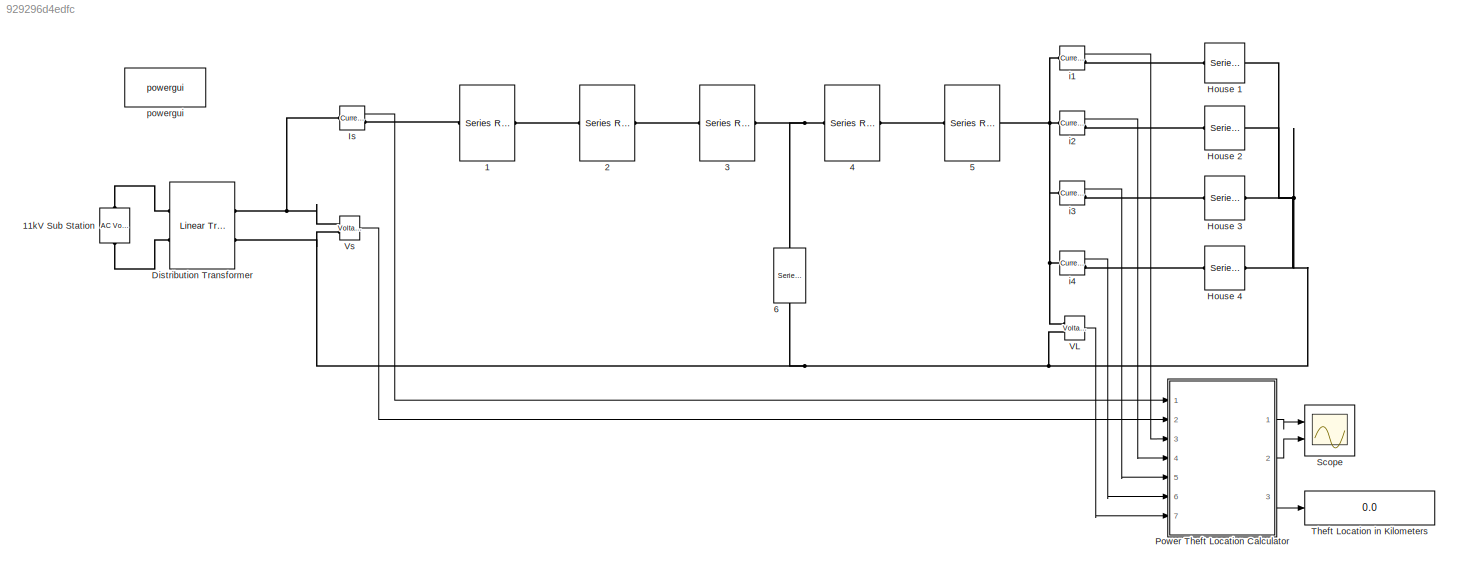
MODEL slx_929296d4edfc
KIND model
CONFIG AbsTol = auto
CONFIG EnableMultiTasking = off
CONFIG FixedStep = auto
CONFIG MaxStep = auto
CONFIG MinStep = auto
CONFIG RelTol = 1e-3
CONFIG SampleTimeConstraint = Unconstrained
CONFIG Solver = VariableStepAuto
CONFIG SolverName = VariableStepAuto
CONFIG StartTime = 0.0
CONFIG StopTime = 1
BLOCK [Reference] 1  REF=powerlib/Elements/Series RLC Branch
  Ports = [0, 0, 0, 0, 0, 1, 1]
  SourceBlock = powerlib/Elements/Series RLC Branch
  SourceProductBaseCode = PS
  SourceProductName = Simscape Power Systems
  SourceType = Series RLC Branch
BLOCK [Reference] 11kV Sub Station  REF=powerlib/Electrical
Sources/AC Voltage Source
  Ports = [0, 0, 0, 0, 0, 1, 1]
  SourceBlock = powerlib/Electrical\nSources/AC Voltage Source
  SourceProductBaseCode = PS
  SourceProductName = Simscape Power Systems
  SourceType = AC Voltage Source
BLOCK [Reference] 2  REF=powerlib/Elements/Series RLC Branch
  Ports = [0, 0, 0, 0, 0, 1, 1]
  SourceBlock = powerlib/Elements/Series RLC Branch
  SourceProductBaseCode = PS
  SourceProductName = Simscape Power Systems
  SourceType = Series RLC Branch
BLOCK [Reference] 3  REF=powerlib/Elements/Series RLC Branch
  Ports = [0, 0, 0, 0, 0, 1, 1]
  SourceBlock = powerlib/Elements/Series RLC Branch
  SourceProductBaseCode = PS
  SourceProductName = Simscape Power Systems
  SourceType = Series RLC Branch
BLOCK [Reference] 4  REF=powerlib/Elements/Series RLC Branch
  Ports = [0, 0, 0, 0, 0, 1, 1]
  SourceBlock = powerlib/Elements/Series RLC Branch
  SourceProductBaseCode = PS
  SourceProductName = Simscape Power Systems
  SourceType = Series RLC Branch
BLOCK [Reference] 5  REF=powerlib/Elements/Series RLC Branch
  Ports = [0, 0, 0, 0, 0, 1, 1]
  SourceBlock = powerlib/Elements/Series RLC Branch
  SourceProductBaseCode = PS
  SourceProductName = Simscape Power Systems
  SourceType = Series RLC Branch
BLOCK [Reference] 6  REF=powerlib/Elements/Series RLC Branch
  Ports = [0, 0, 0, 0, 0, 1, 1]
  SourceBlock = powerlib/Elements/Series RLC Branch
  SourceProductBaseCode = PS
  SourceProductName = Simscape Power Systems
  SourceType = Series RLC Branch
BLOCK [Reference] Distribution Transformer  REF=powerlib/Elements/Linear Transformer
  Ports = [0, 0, 0, 0, 0, 2, 2]
  SourceBlock = powerlib/Elements/Linear Transformer
  SourceProductBaseCode = PS
  SourceProductName = Simscape Power Systems
  SourceType = Linear Transformer
BLOCK [Reference] House 1  REF=powerlib/Elements/Series RLC Branch
  Ports = [0, 0, 0, 0, 0, 1, 1]
  SourceBlock = powerlib/Elements/Series RLC Branch
  SourceProductBaseCode = PS
  SourceProductName = Simscape Power Systems
  SourceType = Series RLC Branch
BLOCK [Reference] House 2  REF=powerlib/Elements/Series RLC Branch
  Ports = [0, 0, 0, 0, 0, 1, 1]
  SourceBlock = powerlib/Elements/Series RLC Branch
  SourceProductBaseCode = PS
  SourceProductName = Simscape Power Systems
  SourceType = Series RLC Branch
BLOCK [Reference] House 3  REF=powerlib/Elements/Series RLC Branch
  Ports = [0, 0, 0, 0, 0, 1, 1]
  SourceBlock = powerlib/Elements/Series RLC Branch
  SourceProductBaseCode = PS
  SourceProductName = Simscape Power Systems
  SourceType = Series RLC Branch
BLOCK [Reference] House 4  REF=powerlib/Elements/Series RLC Branch
  Ports = [0, 0, 0, 0, 0, 1, 1]
  SourceBlock = powerlib/Elements/Series RLC Branch
  SourceProductBaseCode = PS
  SourceProductName = Simscape Power Systems
  SourceType = Series RLC Branch
BLOCK [Reference] Is  REF=powerlib/Measurements/Current Measurement
  Ports = [0, 1, 0, 0, 0, 1, 1]
  SourceBlock = powerlib/Measurements/Current Measurement
  SourceProductBaseCode = PS
  SourceProductName = Simscape Power Systems
  SourceType = Current Measurement
  UserDataPersistent = on
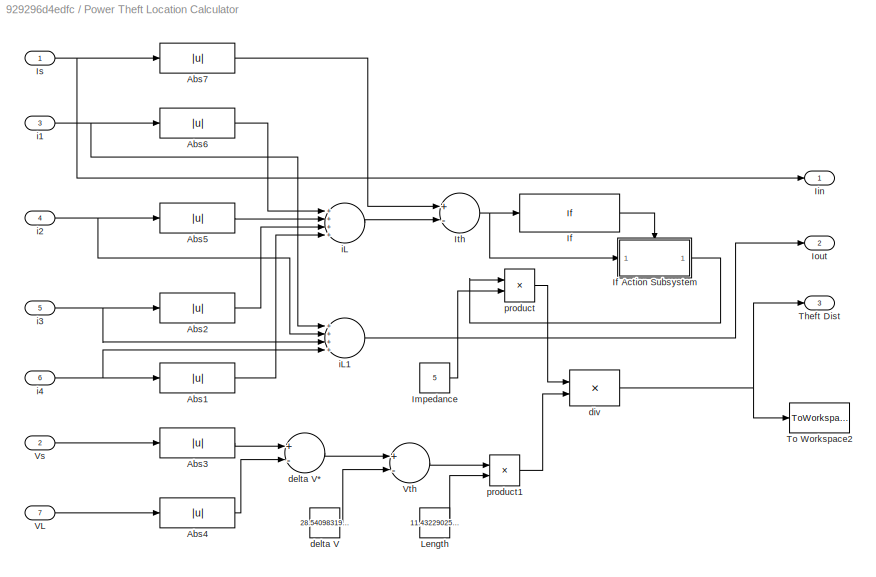
BLOCK [SubSystem] Power Theft Location Calculator
  Ports = [7, 3]
  RequestExecContextInheritance = off
BLOCK [Abs] Power Theft Location Calculator/Abs1
  SaturateOnIntegerOverflow = off
  ZeroCross = off
BLOCK [Abs] Power Theft Location Calculator/Abs2
  SaturateOnIntegerOverflow = off
  ZeroCross = off
BLOCK [Abs] Power Theft Location Calculator/Abs3
  SaturateOnIntegerOverflow = off
  ZeroCross = off
BLOCK [Abs] Power Theft Location Calculator/Abs4
  SaturateOnIntegerOverflow = off
  ZeroCross = off
BLOCK [Abs] Power Theft Location Calculator/Abs5
  SaturateOnIntegerOverflow = off
  ZeroCross = off
BLOCK [Abs] Power Theft Location Calculator/Abs6
  SaturateOnIntegerOverflow = off
  ZeroCross = off
BLOCK [Abs] Power Theft Location Calculator/Abs7
  SaturateOnIntegerOverflow = off
  ZeroCross = off
BLOCK [If] Power Theft Location Calculator/If
  IfExpression = u1 > 1
  Ports = [1, 1]
  ShowElse = off
  ZeroCross = off
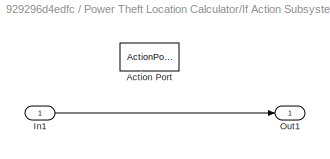
BLOCK [SubSystem] Power Theft Location Calculator/If Action Subsystem
  Ports = [1, 1, 0, 0, 0, 0, 0, 1]
  RequestExecContextInheritance = off
  TreatAsAtomicUnit = on
BLOCK [ActionPort] Power Theft Location Calculator/If Action Subsystem/Action Port
  ActionType = then
BLOCK [Inport] Power Theft Location Calculator/If Action Subsystem/In1
  IconDisplay = Port number
BLOCK [Outport] Power Theft Location Calculator/If Action Subsystem/Out1
  IconDisplay = Port number
BLOCK [Outport] Power Theft Location Calculator/Iin
  IconDisplay = Port number
BLOCK [Constant] Power Theft Location Calculator/Impedance
  Value = 5
BLOCK [Outport] Power Theft Location Calculator/Iout
  IconDisplay = Port number
  Port = 2
BLOCK [Inport] Power Theft Location Calculator/Is
  IconDisplay = Port number
BLOCK [Sum] Power Theft Location Calculator/Ith
  InputSameDT = off
  Inputs = +-
  OutDataTypeStr = Inherit: Inherit via internal rule
  Ports = [2, 1]
  SaturateOnIntegerOverflow = off
BLOCK [Constant] Power Theft Location Calculator/Length
  Value = 11.432290254765737
BLOCK [Outport] Power Theft Location Calculator/Theft Dist
  IconDisplay = Port number
  Port = 3
BLOCK [ToWorkspace] Power Theft Location Calculator/To Workspace2
  FixptAsFi = on
  MaxDataPoints = inf
  Ports = [1]
  SampleTime = -1
  Save2DSignal = 2-D array (concatenate along first dimension)
  VariableName = r1
BLOCK [Inport] Power Theft Location Calculator/VL
  IconDisplay = Port number
  Port = 7
BLOCK [Inport] Power Theft Location Calculator/Vs
  IconDisplay = Port number
  Port = 2
BLOCK [Sum] Power Theft Location Calculator/Vth
  InputSameDT = off
  Inputs = +-
  OutDataTypeStr = Inherit: Inherit via internal rule
  Ports = [2, 1]
  SaturateOnIntegerOverflow = off
BLOCK [Constant] Power Theft Location Calculator/delta V
  Value = 28.5409831954964
BLOCK [Sum] Power Theft Location Calculator/delta V*
  InputSameDT = off
  Inputs = +-
  OutDataTypeStr = Inherit: Inherit via internal rule
  Ports = [2, 1]
  SaturateOnIntegerOverflow = off
BLOCK [Product] Power Theft Location Calculator/div
  InputSameDT = off
  Inputs = /*
  Multiplication = Matrix(*)
  OutDataTypeStr = Inherit: Inherit via internal rule
  Ports = [2, 1]
  RndMeth = Floor
  SaturateOnIntegerOverflow = off
BLOCK [Inport] Power Theft Location Calculator/i1
  IconDisplay = Port number
  Port = 3
BLOCK [Inport] Power Theft Location Calculator/i2
  IconDisplay = Port number
  Port = 4
BLOCK [Inport] Power Theft Location Calculator/i3
  IconDisplay = Port number
  Port = 5
BLOCK [Inport] Power Theft Location Calculator/i4 
  IconDisplay = Port number
  Port = 6
BLOCK [Sum] Power Theft Location Calculator/iL
  InputSameDT = off
  Inputs = ++++
  OutDataTypeStr = Inherit: Inherit via internal rule
  Ports = [4, 1]
  SaturateOnIntegerOverflow = off
BLOCK [Sum] Power Theft Location Calculator/iL1
  InputSameDT = off
  Inputs = ++++
  OutDataTypeStr = Inherit: Inherit via internal rule
  Ports = [4, 1]
  SaturateOnIntegerOverflow = off
BLOCK [Product] Power Theft Location Calculator/product 
  InputSameDT = off
  OutDataTypeStr = Inherit: Inherit via internal rule
  Ports = [2, 1]
  RndMeth = Floor
  SaturateOnIntegerOverflow = off
BLOCK [Product] Power Theft Location Calculator/product1
  InputSameDT = off
  OutDataTypeStr = Inherit: Inherit via internal rule
  Ports = [2, 1]
  RndMeth = Floor
  SaturateOnIntegerOverflow = off
BLOCK [Scope] Scope
  Floating = off
  NumInputPorts = 2
  Ports = [2]
  ScopeSpecificationString = Simulink.scopes.TimeScopeBlockCfg('CurrentConfiguration', extmgr.ConfigurationSet(extmgr.Configuration('Core','General UI',true),extmgr.Configuration('Core','Source UI',true),extmgr.Configuration('Sources','WiredSimulink',true),extmgr.Configuration('Visuals','Time Domain',true,'SerializedDisplays',{struct('MinYLimReal','-9.53161','MaxYLimReal','9.53161','YLabelReal','Current (Amperes)','MinYLimMag...<+1540ch>
BLOCK [Display] Theft Location in Kilometers
  Decimation = 15
  Format = long
  Ports = [1]
BLOCK [Reference] VL  REF=powerlib/Measurements/Voltage Measurement
  Ports = [0, 1, 0, 0, 0, 2]
  SourceBlock = powerlib/Measurements/Voltage Measurement
  SourceProductBaseCode = PS
  SourceProductName = Simscape Power Systems
  SourceType = Voltage Measurement
  UserDataPersistent = on
BLOCK [Reference] Vs  REF=powerlib/Measurements/Voltage Measurement
  Ports = [0, 1, 0, 0, 0, 2]
  SourceBlock = powerlib/Measurements/Voltage Measurement
  SourceProductBaseCode = PS
  SourceProductName = Simscape Power Systems
  SourceType = Voltage Measurement
  UserDataPersistent = on
BLOCK [Reference] i1  REF=powerlib/Measurements/Current Measurement
  Ports = [0, 1, 0, 0, 0, 1, 1]
  SourceBlock = powerlib/Measurements/Current Measurement
  SourceProductBaseCode = PS
  SourceProductName = Simscape Power Systems
  SourceType = Current Measurement
  UserDataPersistent = on
BLOCK [Reference] i2  REF=powerlib/Measurements/Current Measurement
  Ports = [0, 1, 0, 0, 0, 1, 1]
  SourceBlock = powerlib/Measurements/Current Measurement
  SourceProductBaseCode = PS
  SourceProductName = Simscape Power Systems
  SourceType = Current Measurement
  UserDataPersistent = on
BLOCK [Reference] i3  REF=powerlib/Measurements/Current Measurement
  Ports = [0, 1, 0, 0, 0, 1, 1]
  SourceBlock = powerlib/Measurements/Current Measurement
  SourceProductBaseCode = PS
  SourceProductName = Simscape Power Systems
  SourceType = Current Measurement
  UserDataPersistent = on
BLOCK [Reference] i4  REF=powerlib/Measurements/Current Measurement
  Ports = [0, 1, 0, 0, 0, 1, 1]
  SourceBlock = powerlib/Measurements/Current Measurement
  SourceProductBaseCode = PS
  SourceProductName = Simscape Power Systems
  SourceType = Current Measurement
  UserDataPersistent = on
BLOCK [Reference] powergui  REF=powerlib/powergui
  Ports = []
  Priority = 1
  SourceBlock = powerlib/powergui
  SourceProductBaseCode = PS
  SourceProductName = Simscape Power Systems
  SourceType = PSB option menu block
LINE Is:1 -> Power Theft Location Calculator:1
LINE Power Theft Location Calculator/Abs1:1 -> Power Theft Location Calculator/iL:4
LINE Power Theft Location Calculator/Abs2:1 -> Power Theft Location Calculator/iL:3
LINE Power Theft Location Calculator/Abs3:1 -> Power Theft Location Calculator/delta V*:1
LINE Power Theft Location Calculator/Abs4:1 -> Power Theft Location Calculator/delta V*:2
LINE Power Theft Location Calculator/Abs5:1 -> Power Theft Location Calculator/iL:2
LINE Power Theft Location Calculator/Abs6:1 -> Power Theft Location Calculator/iL:1
LINE Power Theft Location Calculator/Abs7:1 -> Power Theft Location Calculator/Ith:1
LINE Power Theft Location Calculator/If Action Subsystem/In1:1 -> Power Theft Location Calculator/If Action Subsystem/Out1:1
LINE Power Theft Location Calculator/If Action Subsystem:1 -> Power Theft Location Calculator/product :1
LINE Power Theft Location Calculator/If:1 -> Power Theft Location Calculator/If Action Subsystem:ifaction
LINE Power Theft Location Calculator/Impedance:1 -> Power Theft Location Calculator/product :2
NET Power Theft Location Calculator/Is:1 -> Power Theft Location Calculator/Abs7:1, Power Theft Location Calculator/Iin:1
NET Power Theft Location Calculator/Ith:1 -> Power Theft Location Calculator/If Action Subsystem:1, Power Theft Location Calculator/If:1
LINE Power Theft Location Calculator/Length:1 -> Power Theft Location Calculator/product1:2
LINE Power Theft Location Calculator/VL:1 -> Power Theft Location Calculator/Abs4:1
LINE Power Theft Location Calculator/Vs:1 -> Power Theft Location Calculator/Abs3:1
LINE Power Theft Location Calculator/Vth:1 -> Power Theft Location Calculator/product1:1
LINE Power Theft Location Calculator/delta V*:1 -> Power Theft Location Calculator/Vth:1
LINE Power Theft Location Calculator/delta V:1 -> Power Theft Location Calculator/Vth:2
NET Power Theft Location Calculator/div:1 -> Power Theft Location Calculator/Theft Dist:1, Power Theft Location Calculator/To Workspace2:1
NET Power Theft Location Calculator/i1:1 -> Power Theft Location Calculator/Abs6:1, Power Theft Location Calculator/iL1:1
NET Power Theft Location Calculator/i2:1 -> Power Theft Location Calculator/Abs5:1, Power Theft Location Calculator/iL1:2
NET Power Theft Location Calculator/i3:1 -> Power Theft Location Calculator/Abs2:1, Power Theft Location Calculator/iL1:3
NET Power Theft Location Calculator/i4 :1 -> Power Theft Location Calculator/Abs1:1, Power Theft Location Calculator/iL1:4
LINE Power Theft Location Calculator/iL1:1 -> Power Theft Location Calculator/Iout:1
LINE Power Theft Location Calculator/iL:1 -> Power Theft Location Calculator/Ith:2
LINE Power Theft Location Calculator/product :1 -> Power Theft Location Calculator/div:1
LINE Power Theft Location Calculator/product1:1 -> Power Theft Location Calculator/div:2
LINE Power Theft Location Calculator:1 -> Scope:1
LINE Power Theft Location Calculator:2 -> Scope:2
LINE Power Theft Location Calculator:3 -> Theft Location in Kilometers:1
LINE VL:1 -> Power Theft Location Calculator:7
LINE Vs:1 -> Power Theft Location Calculator:2
LINE i1:1 -> Power Theft Location Calculator:3
LINE i2:1 -> Power Theft Location Calculator:4
LINE i3:1 -> Power Theft Location Calculator:5
LINE i4:1 -> Power Theft Location Calculator:6
PLINE 11kV Sub Station:LConn1 -- Distribution Transformer:LConn2
PLINE 11kV Sub Station:RConn1 -- Distribution Transformer:LConn1
PLINE 1:LConn1 -- Is:RConn1
PLINE 1:RConn1 -- 2:LConn1
PLINE 2:RConn1 -- 3:LConn1
PNET net1: 3:RConn1 -- 4:LConn1 -- 6:LConn1
PLINE 4:RConn1 -- 5:LConn1
PNET net2: 5:RConn1 -- VL:LConn1 -- i1:LConn1 -- i2:LConn1 -- i3:LConn1 -- i4:LConn1
PNET net3: 6:RConn1 -- Distribution Transformer:RConn2 -- House 1:RConn1 -- House 2:RConn1 -- House 3:RConn1 -- House 4:RConn1 -- VL:LConn2 -- Vs:LConn2
PNET net4: Distribution Transformer:RConn1 -- Is:LConn1 -- Vs:LConn1
PLINE House 1:LConn1 -- i1:RConn1
PLINE House 2:LConn1 -- i2:RConn1
PLINE House 3:LConn1 -- i3:RConn1
PLINE House 4:LConn1 -- i4:RConn1
note: NET lines group one-source signal fan-out (src -> all destinations, sorted); 1:1 wires keep LINE; PNET lines group multi-terminal physical nets as a canonical sorted terminal list (undirected conserving connections); 2-terminal nets keep the pairwise PLINE form
